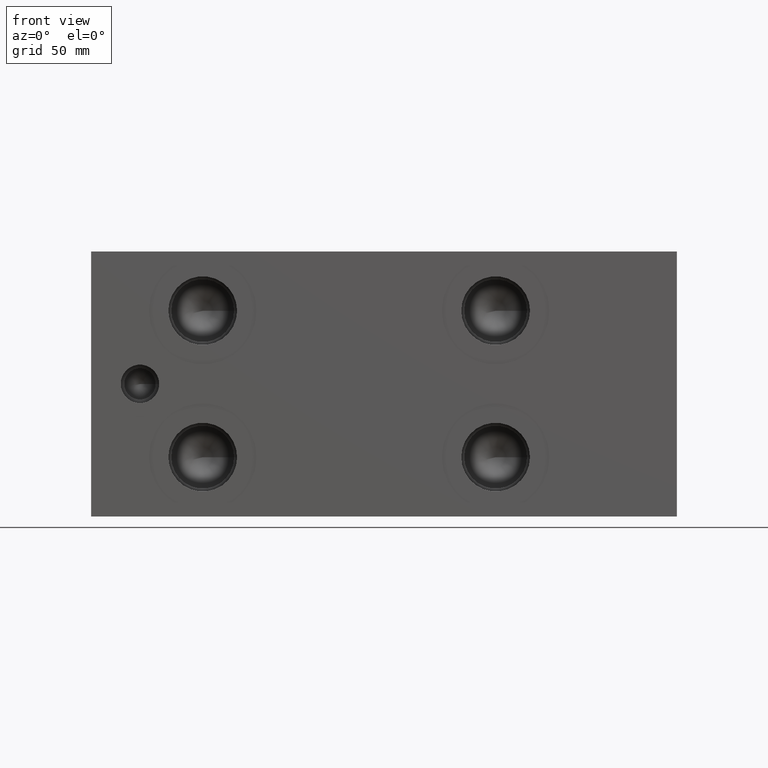
[diagram: clean part render]
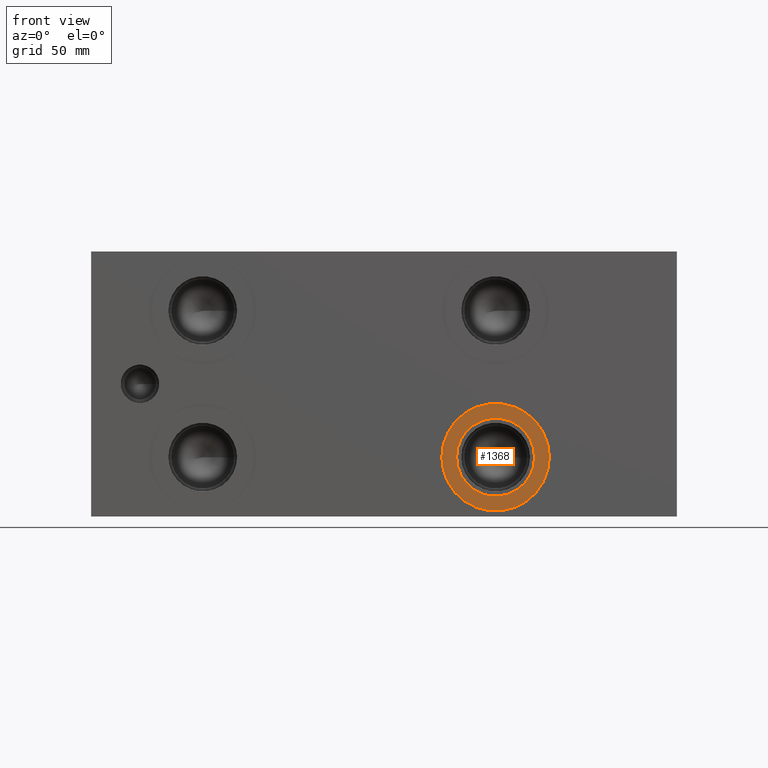
[diagram: same view with one face highlighted and labeled with its STEP entity id]
A machine part, front view. The second image highlights one B-rep face of the part: STEP entity #1368.
In plain terms, the highlighted planar face has unit normal (0, 1, 0).
Its self-contained STEP definition (entity closure, byte-faithful):
#1334=CARTESIAN_POINT('',(201.90460000000002,0.7874,26.987500000000004));
#1335=VERTEX_POINT('',#1334);
#1336=CARTESIAN_POINT('',(184.15000000000003,0.7874,26.987500000000004));
#1337=DIRECTION('',(0.0,-1.0,0.0));
#1338=DIRECTION('',(1.0,0.0,0.0));
#1339=AXIS2_PLACEMENT_3D('',#1336,#1337,#1338);
#1340=CIRCLE('',#1339,17.754599999999989);
#1341=EDGE_CURVE('',#1335,#1335,#1340,.T.);
#1349=CARTESIAN_POINT('',(205.27010000000004,0.7874,26.987500000000004));
#1350=DIRECTION('',(0.0,1.0,0.0));
#1351=DIRECTION('',(0.0,0.0,1.0));
#1352=AXIS2_PLACEMENT_3D('',#1349,#1350,#1351);
#1353=PLANE('',#1352);
#1354=CARTESIAN_POINT('',(208.63560000000004,0.7874,26.987500000000004));
#1355=VERTEX_POINT('',#1354);
#1356=CARTESIAN_POINT('',(184.15000000000003,0.7874,26.987500000000004));
#1357=DIRECTION('',(0.0,-1.0,0.0));
#1358=DIRECTION('',(1.0,0.0,0.0));
#1359=AXIS2_PLACEMENT_3D('',#1356,#1357,#1358);
#1360=CIRCLE('',#1359,24.485600000000005);
#1361=EDGE_CURVE('',#1355,#1355,#1360,.T.);
#1362=ORIENTED_EDGE('',*,*,#1361,.T.);
#1363=EDGE_LOOP('',(#1362));
#1364=FACE_OUTER_BOUND('',#1363,.T.);
#1365=ORIENTED_EDGE('',*,*,#1341,.F.);
#1366=EDGE_LOOP('',(#1365));
#1367=FACE_BOUND('',#1366,.T.);
#1368=ADVANCED_FACE('',(#1364,#1367),#1353,.F.);